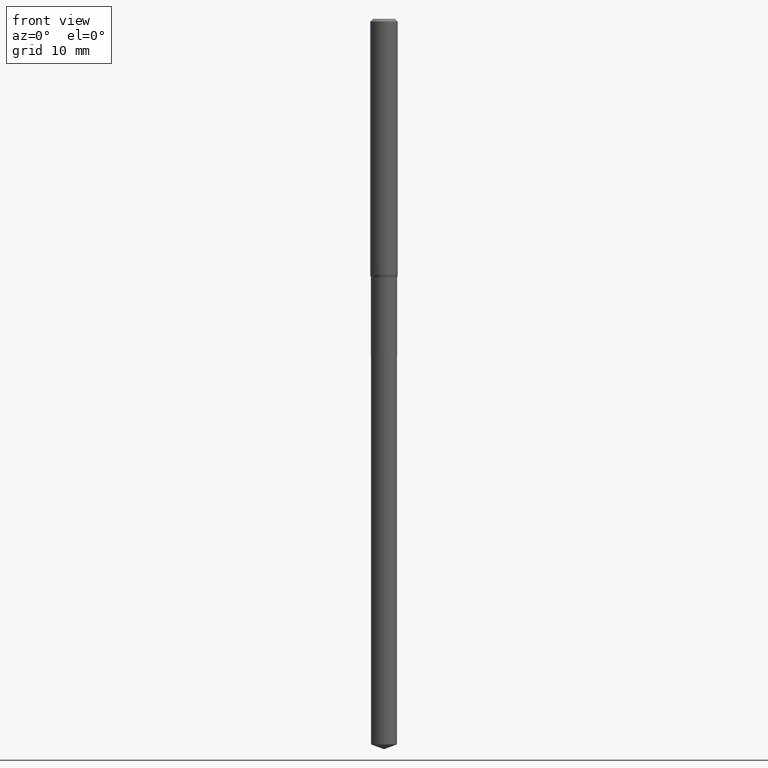
[diagram: clean part render]
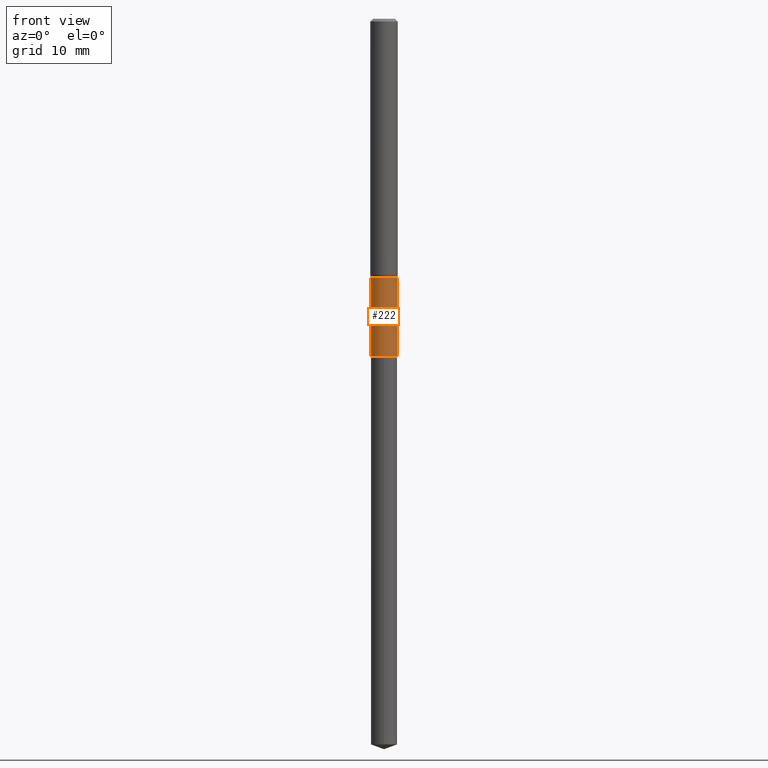
[diagram: same view with one face highlighted and labeled with its STEP entity id]
A machine part, front view. The second image highlights one B-rep face of the part: STEP entity #222.
In plain terms, the highlighted cylindrical surface (edge-blend (fillet) strip) has radius 1.8999 mm, axis along (-0, 0, 1).
Its self-contained STEP definition (entity closure, byte-faithful):
#4 = CARTESIAN_POINT ( 'NONE',  ( -0.07479999999999996374, 5.314859663485546814E-16, -3.679363447510667278E-30 ) ) ;
#10 = VERTEX_POINT ( 'NONE', #82 ) ;
#25 = DIRECTION ( 'NONE',  ( -2.445468806185136597E-29, 3.491481338843145583E-15, 1.000000000000000000 ) ) ;
#28 = AXIS2_PLACEMENT_3D ( 'NONE', #408, #229, #291 ) ;
#45 = VECTOR ( 'NONE', #451, 39.37007874015748143 ) ;
#71 = EDGE_CURVE ( 'NONE', #363, #226, #257, .T. ) ;
#76 = EDGE_LOOP ( 'NONE', ( #152, #202, #368, #242 ) ) ;
#82 = CARTESIAN_POINT ( 'NONE',  ( -0.07479999999999999150, -5.414855901835204968E-15, -1.928599999999999648 ) ) ;
#107 = CARTESIAN_POINT ( 'NONE',  ( 0.000000000000000000, 0.000000000000000000, 0.000000000000000000 ) ) ;
#109 = EDGE_CURVE ( 'NONE', #10, #363, #404, .T. ) ;
#128 = EDGE_CURVE ( 'NONE', #382, #226, #196, .T. ) ;
#141 = CARTESIAN_POINT ( 'NONE',  ( 0.07479999999999999150, -7.255996518383823001E-15, -1.928599999999999648 ) ) ;
#149 = CARTESIAN_POINT ( 'NONE',  ( 0.07479999999999993598, -5.681338434565562884E-15, -1.477599999999999580 ) ) ;
#152 = ORIENTED_EDGE ( 'NONE', *, *, #171, .F. ) ;
#160 = AXIS2_PLACEMENT_3D ( 'NONE', #224, #25, #182 ) ;
#171 = EDGE_CURVE ( 'NONE', #10, #382, #459, .T. ) ;
#182 = DIRECTION ( 'NONE',  ( 1.000000000000000000, -6.982962677686268288E-15, 0.000000000000000000 ) ) ;
#196 = CIRCLE ( 'NONE', #160, 0.07479999999999993598 ) ;
#202 = ORIENTED_EDGE ( 'NONE', *, *, #109, .T. ) ;
#222 = ADVANCED_FACE ( 'NONE', ( #385 ), #456, .T. ) ;
#224 = CARTESIAN_POINT ( 'NONE',  ( 3.613424708019156582E-29, -5.159012826274630084E-15, -1.477599999999999580 ) ) ;
#226 = VERTEX_POINT ( 'NONE', #149 ) ;
#229 = DIRECTION ( 'NONE',  ( -2.445468806185136597E-29, 3.491481338843145583E-15, 1.000000000000000000 ) ) ;
#242 = ORIENTED_EDGE ( 'NONE', *, *, #128, .F. ) ;
#257 = LINE ( 'NONE', #341, #332 ) ;
#266 = CARTESIAN_POINT ( 'NONE',  ( -0.07479999999999993598, -5.414855901835204968E-15, -1.477599999999999580 ) ) ;
#291 = DIRECTION ( 'NONE',  ( 1.000000000000000000, -6.982962677686262766E-15, 0.000000000000000000 ) ) ;
#332 = VECTOR ( 'NONE', #375, 39.37007874015748143 ) ;
#341 = CARTESIAN_POINT ( 'NONE',  ( 0.07479999999999996374, -5.223256082909324060E-16, 3.647380228295358062E-30 ) ) ;
#354 = DIRECTION ( 'NONE',  ( 1.000000000000000000, -6.982962677686265133E-15, 4.876176775795935793E-29 ) ) ;
#363 = VERTEX_POINT ( 'NONE', #141 ) ;
#368 = ORIENTED_EDGE ( 'NONE', *, *, #71, .T. ) ;
#375 = DIRECTION ( 'NONE',  ( -2.445468806185136877E-29, 3.491481338843145188E-15, 1.000000000000000000 ) ) ;
#382 = VERTEX_POINT ( 'NONE', #266 ) ;
#385 = FACE_OUTER_BOUND ( 'NONE', #76, .T. ) ;
#395 = DIRECTION ( 'NONE',  ( -2.445468806185136597E-29, 3.491481338843145583E-15, 1.000000000000000000 ) ) ;
#404 = CIRCLE ( 'NONE', #28, 0.07479999999999999150 ) ;
#408 = CARTESIAN_POINT ( 'NONE',  ( 4.716331139608653877E-29, -6.733670910092890200E-15, -1.928599999999999648 ) ) ;
#429 = AXIS2_PLACEMENT_3D ( 'NONE', #107, #395, #354 ) ;
#451 = DIRECTION ( 'NONE',  ( -2.445468806185136877E-29, 3.491481338843145188E-15, 1.000000000000000000 ) ) ;
#456 = CYLINDRICAL_SURFACE ( 'NONE', #429, 0.07479999999999996374 ) ;
#459 = LINE ( 'NONE', #4, #45 ) ;